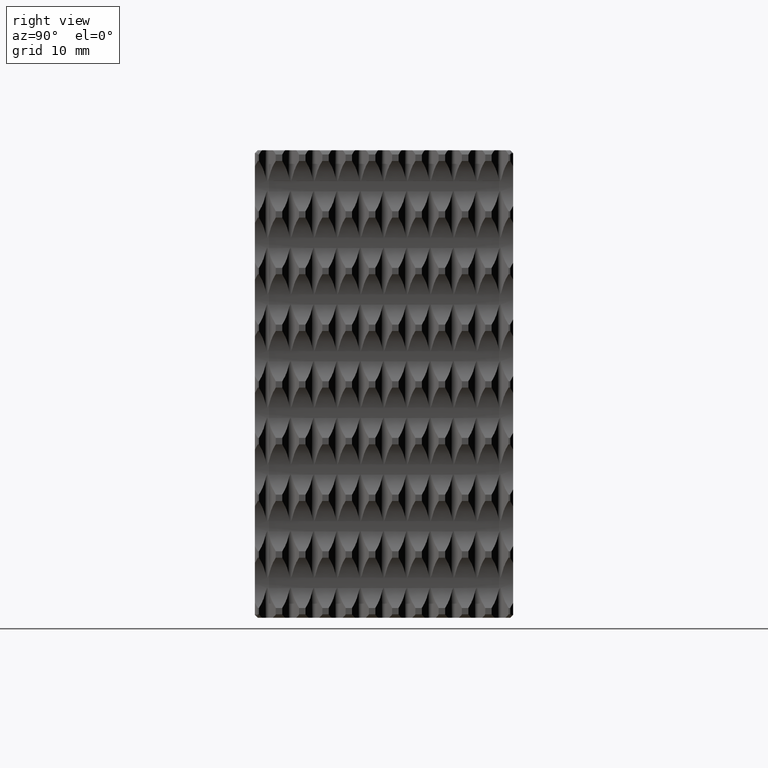
[diagram: clean part render]
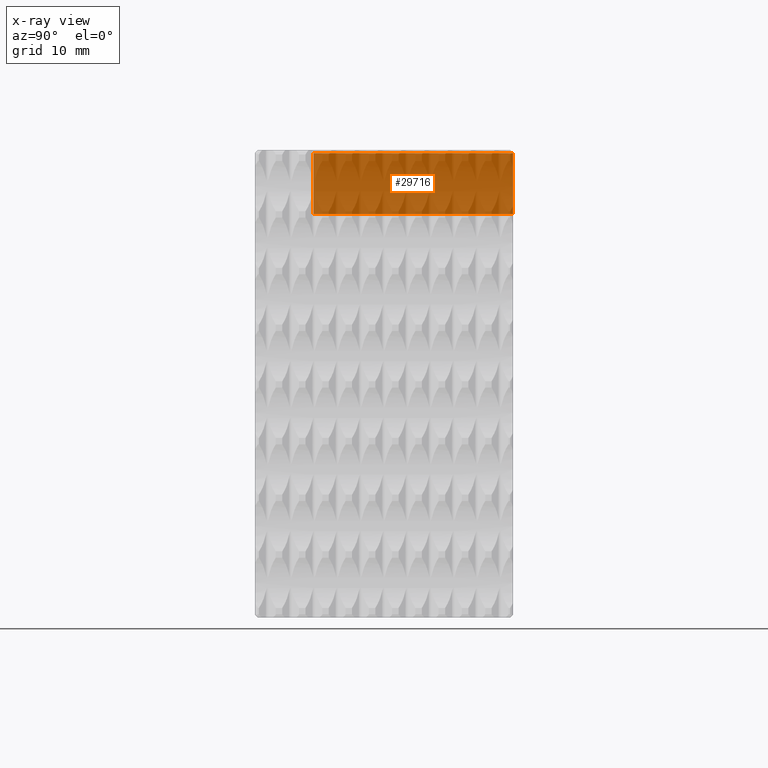
[diagram: x-ray — body ghosted, one internal face saturated and labeled with its STEP entity id]
A machine part, right view, then the same camera in x-ray: the body is ghosted and one INTERNAL B-rep face — a face not visible from any outside direction — is saturated and labeled: STEP entity #29716.
In plain terms, the highlighted planar face has unit normal (-0.9397, 0.342, 0).
Its self-contained STEP definition (entity closure, byte-faithful):
#2019 = VECTOR ( 'NONE', #10975, 39.37007874015748143 ) ;
#2424 = CARTESIAN_POINT ( 'NONE',  ( 0.4998034217548369962, 0.6690000000000000391, 0.5695936120442621764 ) ) ;
#2841 = PLANE ( 'NONE',  #12219 ) ;
#4344 = VERTEX_POINT ( 'NONE', #2424 ) ;
#5380 = DIRECTION ( 'NONE',  ( -0.3420201433256630508, -0.9396926207859103153, 0.0000000000000000000 ) ) ;
#6176 = VECTOR ( 'NONE', #26178, 39.37007874015748143 ) ;
#6991 = ORIENTED_EDGE ( 'NONE', *, *, #9361, .T. ) ;
#7034 = DIRECTION ( 'NONE',  ( -0.3420201433256630508, -0.9396926207859103153, 0.0000000000000000000 ) ) ;
#7830 = CARTESIAN_POINT ( 'NONE',  ( 0.5142438609351966949, 0.7086747805750471807, 0.5643974596215555195 ) ) ;
#8438 = CARTESIAN_POINT ( 'NONE',  ( 0.4998034217548369962, 0.6690000000000000391, 0.7834645669291337988 ) ) ;
#8883 = VERTEX_POINT ( 'NONE', #28863 ) ;
#9254 = FACE_OUTER_BOUND ( 'NONE', #23045, .T. ) ;
#9361 = EDGE_CURVE ( 'NONE', #29533, #8883, #22724, .T. ) ;
#10887 = EDGE_CURVE ( 'NONE', #23010, #4344, #24591, .T. ) ;
#10975 = DIRECTION ( 'NONE',  ( 0.0000000000000000000, 0.0000000000000000000, -1.000000000000000000 ) ) ;
#11874 = DIRECTION ( 'NONE',  ( 0.3420201433256630508, 0.9396926207859103153, -0.0000000000000000000 ) ) ;
#12219 = AXIS2_PLACEMENT_3D ( 'NONE', #7830, #20608, #5380 ) ;
#14758 = LINE ( 'NONE', #8438, #2019 ) ;
#17614 = EDGE_CURVE ( 'NONE', #23010, #8883, #28092, .T. ) ;
#17844 = VECTOR ( 'NONE', #11874, 39.37007874015748854 ) ;
#18310 = VECTOR ( 'NONE', #7034, 39.37007874015748854 ) ;
#19571 = CARTESIAN_POINT ( 'NONE',  ( 0.2563073350307520926, -2.197440007414683988E-18, 0.5695936120442621764 ) ) ;
#20608 = DIRECTION ( 'NONE',  ( -0.9396926207859105373, 0.3420201433256631063, 0.0000000000000000000 ) ) ;
#20700 = ORIENTED_EDGE ( 'NONE', *, *, #17614, .F. ) ;
#21875 = ORIENTED_EDGE ( 'NONE', *, *, #31897, .F. ) ;
#22307 = CARTESIAN_POINT ( 'NONE',  ( 0.5142438609351966949, 0.7086747805750471807, 0.7734645669291333459 ) ) ;
#22724 = LINE ( 'NONE', #22307, #18310 ) ;
#23010 = VERTEX_POINT ( 'NONE', #19571 ) ;
#23045 = EDGE_LOOP ( 'NONE', ( #20700, #24620, #21875, #6991 ) ) ;
#23614 = CARTESIAN_POINT ( 'NONE',  ( 0.2563073350307520926, -2.197440007414683988E-18, 0.7834645669291337988 ) ) ;
#24591 = LINE ( 'NONE', #29668, #17844 ) ;
#24620 = ORIENTED_EDGE ( 'NONE', *, *, #10887, .T. ) ;
#26178 = DIRECTION ( 'NONE',  ( 0.0000000000000000000, 0.0000000000000000000, 1.000000000000000000 ) ) ;
#28092 = LINE ( 'NONE', #23614, #6176 ) ;
#28863 = CARTESIAN_POINT ( 'NONE',  ( 0.2563073350307520926, -2.197440007414683988E-18, 0.7734645669291333459 ) ) ;
#29533 = VERTEX_POINT ( 'NONE', #32318 ) ;
#29668 = CARTESIAN_POINT ( 'NONE',  ( 0.4998034217548369407, 0.6690000000000000391, 0.5695936120442621764 ) ) ;
#29716 = ADVANCED_FACE ( 'NONE', ( #9254 ), #2841, .F. ) ;
#31897 = EDGE_CURVE ( 'NONE', #29533, #4344, #14758, .T. ) ;
#32318 = CARTESIAN_POINT ( 'NONE',  ( 0.4998034217548369962, 0.6690000000000000391, 0.7734645669291333459 ) ) ;